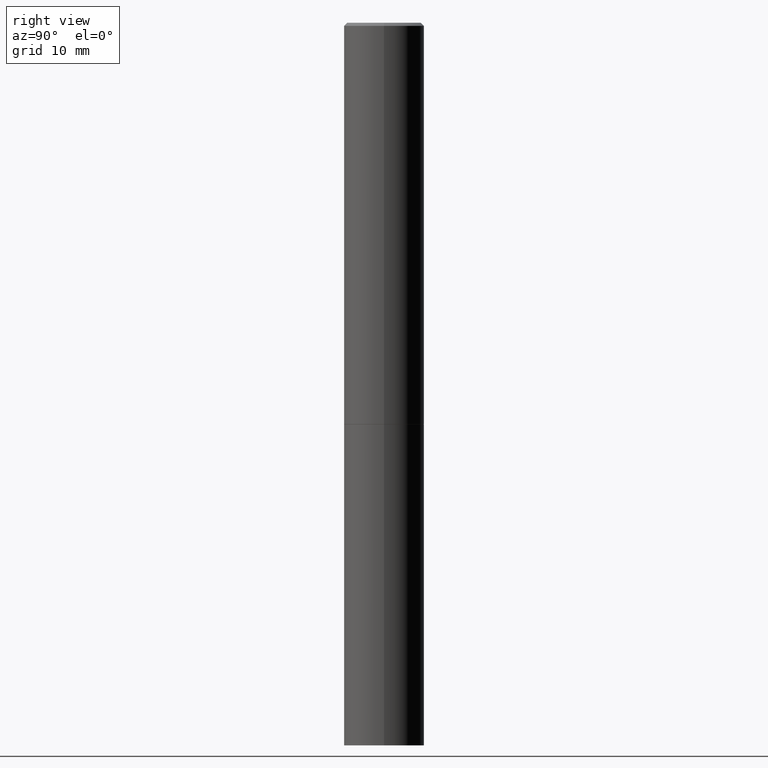
[diagram: clean part render]
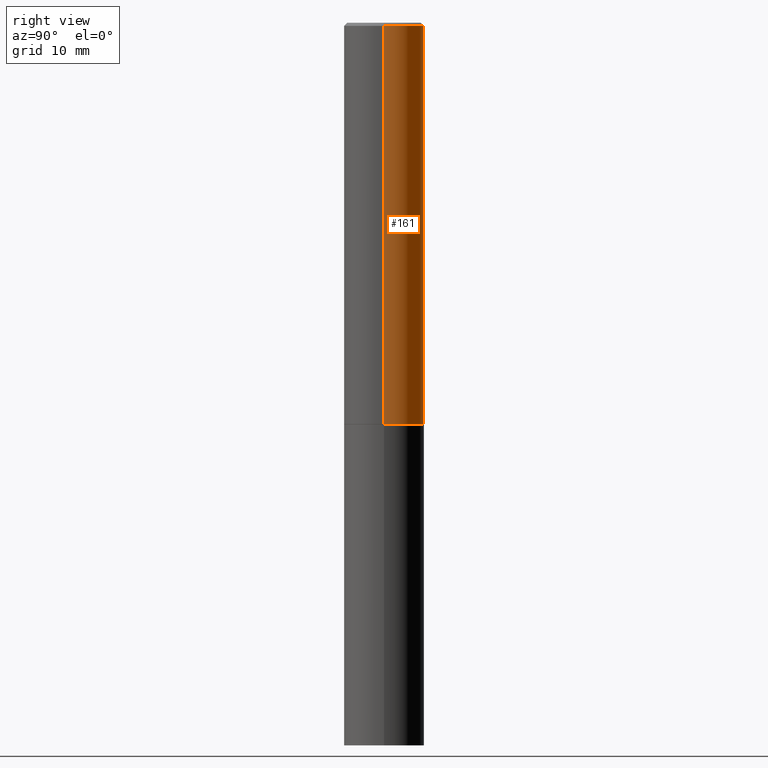
[diagram: same view with one face highlighted and labeled with its STEP entity id]
A machine part, right view. The second image highlights one B-rep face of the part: STEP entity #161.
In plain terms, the highlighted cylindrical surface (partial cylindrical patch) has radius 6.35 mm, axis along (-0, 0, 1).
Its self-contained STEP definition (entity closure, byte-faithful):
#19 = EDGE_CURVE ( 'NONE', #319, #142, #288, .T. ) ;
#27 = CARTESIAN_POINT ( 'NONE',  ( -0.2499999999999999722, -2.621163906872689391E-15, -2.499000000000000110 ) ) ;
#36 = EDGE_CURVE ( 'NONE', #225, #116, #55, .T. ) ;
#55 = CIRCLE ( 'NONE', #272, 0.2499999999999996947 ) ;
#67 = FACE_OUTER_BOUND ( 'NONE', #238, .T. ) ;
#82 = AXIS2_PLACEMENT_3D ( 'NONE', #93, #158, #209 ) ;
#86 = DIRECTION ( 'NONE',  ( 1.000000000000000000, -6.982962677686266711E-15, 4.876176775795935793E-29 ) ) ;
#93 = CARTESIAN_POINT ( 'NONE',  ( 6.111226546656657010E-29, -8.725211865769021935E-15, -2.499000000000000110 ) ) ;
#103 = CARTESIAN_POINT ( 'NONE',  ( -0.2499999999999996947, 1.675911042644701407E-15, -0.02000000000000006981 ) ) ;
#113 = AXIS2_PLACEMENT_3D ( 'NONE', #255, #260, #86 ) ;
#115 = CARTESIAN_POINT ( 'NONE',  ( 0.2500000000000000000, -1.047095253519058861E-14, -2.499000000000000110 ) ) ;
#116 = VERTEX_POINT ( 'NONE', #103 ) ;
#119 = ORIENTED_EDGE ( 'NONE', *, *, #36, .F. ) ;
#142 = VERTEX_POINT ( 'NONE', #27 ) ;
#154 = VECTOR ( 'NONE', #198, 39.37007874015748143 ) ;
#158 = DIRECTION ( 'NONE',  ( -2.445468806185136597E-29, 3.491481338843145583E-15, 1.000000000000000000 ) ) ;
#161 = ADVANCED_FACE ( 'NONE', ( #67 ), #170, .T. ) ;
#168 = DIRECTION ( 'NONE',  ( 1.000000000000000000, -6.982962677686266711E-15, 0.000000000000000000 ) ) ;
#170 = CYLINDRICAL_SURFACE ( 'NONE', #113, 0.2499999999999998612 ) ;
#189 = ORIENTED_EDGE ( 'NONE', *, *, #316, .T. ) ;
#195 = LINE ( 'NONE', #228, #320 ) ;
#198 = DIRECTION ( 'NONE',  ( -2.445468806185136877E-29, 3.491481338843145188E-15, 1.000000000000000000 ) ) ;
#199 = CARTESIAN_POINT ( 'NONE',  ( 0.2499999999999996947, -1.784954126219743822E-15, -0.02000000000000006981 ) ) ;
#200 = EDGE_CURVE ( 'NONE', #319, #225, #195, .T. ) ;
#202 = ORIENTED_EDGE ( 'NONE', *, *, #19, .T. ) ;
#209 = DIRECTION ( 'NONE',  ( 1.000000000000000000, -6.982962677686266711E-15, 0.000000000000000000 ) ) ;
#220 = CARTESIAN_POINT ( 'NONE',  ( -0.2499999999999998612, 1.776356839400249479E-15, -1.229733772563725745E-29 ) ) ;
#222 = CARTESIAN_POINT ( 'NONE',  ( 4.890937612370289799E-31, -6.982962677686315028E-17, -0.02000000000000006981 ) ) ;
#225 = VERTEX_POINT ( 'NONE', #199 ) ;
#228 = CARTESIAN_POINT ( 'NONE',  ( 0.2499999999999998612, -1.745740669421565692E-15, 1.219044193948983248E-29 ) ) ;
#238 = EDGE_LOOP ( 'NONE', ( #202, #189, #119, #338 ) ) ;
#255 = CARTESIAN_POINT ( 'NONE',  ( 0.000000000000000000, 0.000000000000000000, 0.000000000000000000 ) ) ;
#260 = DIRECTION ( 'NONE',  ( -2.445468806185136597E-29, 3.491481338843145583E-15, 1.000000000000000000 ) ) ;
#272 = AXIS2_PLACEMENT_3D ( 'NONE', #222, #306, #168 ) ;
#288 = CIRCLE ( 'NONE', #82, 0.2500000000000000000 ) ;
#306 = DIRECTION ( 'NONE',  ( -2.445468806185136597E-29, 3.491481338843145583E-15, 1.000000000000000000 ) ) ;
#316 = EDGE_CURVE ( 'NONE', #142, #116, #364, .T. ) ;
#319 = VERTEX_POINT ( 'NONE', #115 ) ;
#320 = VECTOR ( 'NONE', #334, 39.37007874015748143 ) ;
#334 = DIRECTION ( 'NONE',  ( -2.445468806185136877E-29, 3.491481338843145188E-15, 1.000000000000000000 ) ) ;
#338 = ORIENTED_EDGE ( 'NONE', *, *, #200, .F. ) ;
#364 = LINE ( 'NONE', #220, #154 ) ;